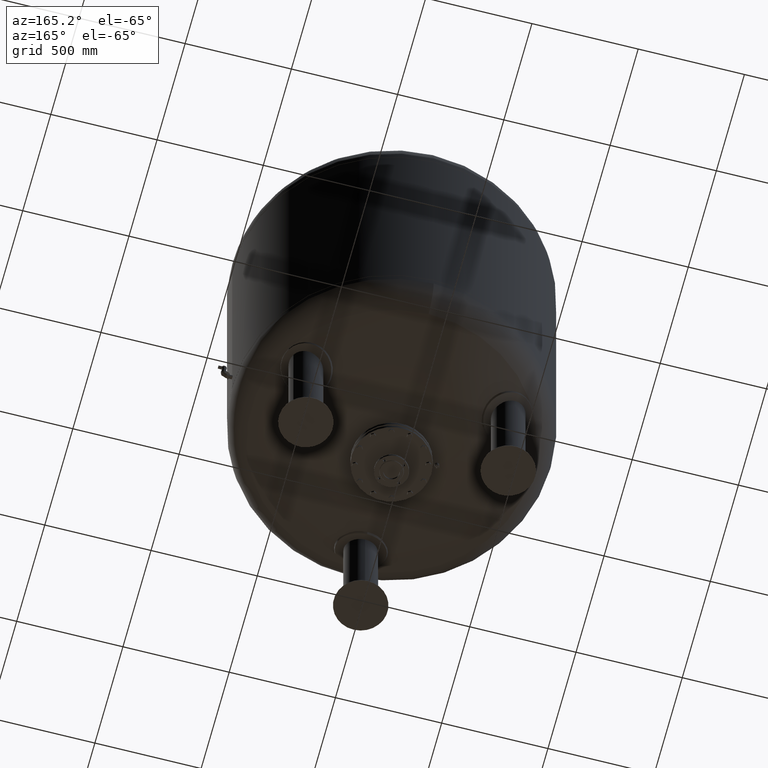
[diagram: clean part render]
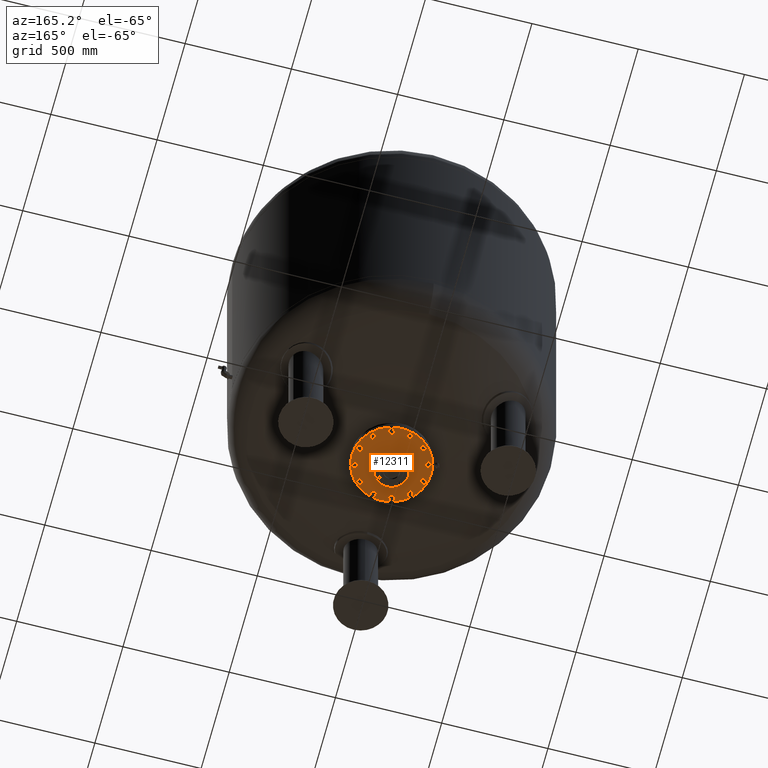
[diagram: same view with one face highlighted and labeled with its STEP entity id]
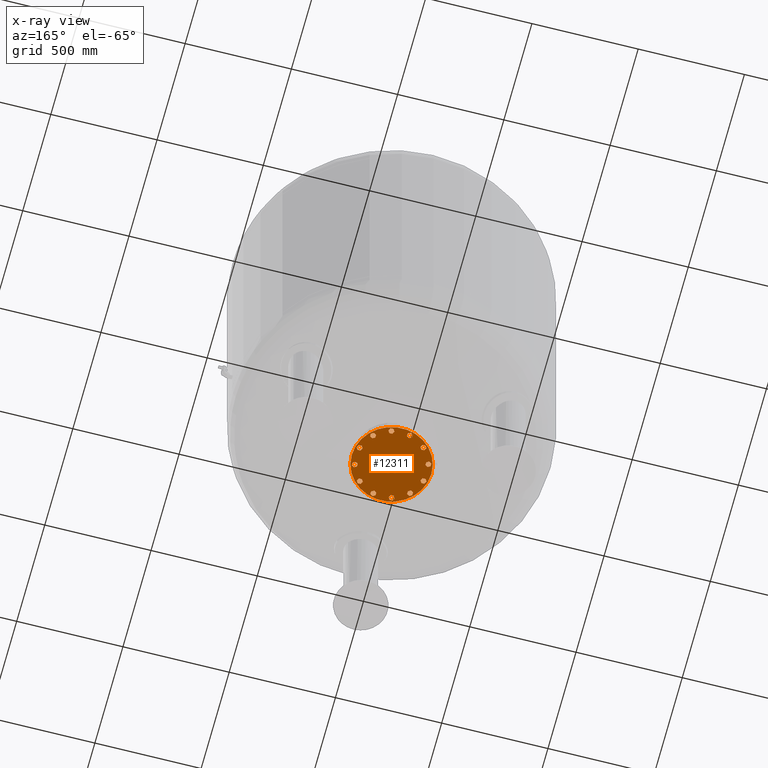
[diagram: x-ray of the same camera — body ghosted, the highlighted face saturated]
A machine part, auxiliary view. The second image highlights one B-rep face of the part: STEP entity #12311.
The next image is the same camera in x-ray: the body ghosted, the highlighted face saturated — about 0% of this face is hidden behind the body in this view.
In plain terms, the highlighted planar face has unit normal (0, 0, -1).
Its self-contained STEP definition (entity closure, byte-faithful):
#4455=CARTESIAN_POINT('',(-38.050000000000018,-4.163799E-015,391.0));
#4456=VERTEX_POINT('',#4455);
#4472=CARTESIAN_POINT('',(38.049999999999983,-8.823426E-015,391.0));
#4473=VERTEX_POINT('',#4472);
#4480=CARTESIAN_POINT('',(-8.604691E-015,-4.163799E-015,391.0));
#4481=DIRECTION('',(0.0,0.0,-1.0));
#4482=DIRECTION('',(-1.0,0.0,0.0));
#4483=AXIS2_PLACEMENT_3D('',#4480,#4481,#4482);
#4484=CIRCLE('',#4483,38.050000000000004);
#4485=EDGE_CURVE('',#4473,#4456,#4484,.T.);
#4495=CARTESIAN_POINT('',(-187.500000000000000,-4.163799E-015,391.000000000000110));
#4496=VERTEX_POINT('',#4495);
#4505=CARTESIAN_POINT('',(187.500000000000000,-2.712517E-014,391.000000000000110));
#4506=VERTEX_POINT('',#4505);
#4507=CARTESIAN_POINT('',(-8.604691E-015,-4.163799E-015,391.000000000000110));
#4508=DIRECTION('',(0.0,0.0,-1.0));
#4509=DIRECTION('',(-1.0,0.0,0.0));
#4510=AXIS2_PLACEMENT_3D('',#4507,#4508,#4509);
#4511=CIRCLE('',#4510,187.500000000000000);
#4512=EDGE_CURVE('',#4506,#4496,#4511,.T.);
#6511=CARTESIAN_POINT('',(43.352190054672320,-175.648982363969960,391.0));
#6512=VERTEX_POINT('',#6511);
#6513=CARTESIAN_POINT('',(55.352190054672313,-168.720779133694460,391.0));
#6514=VERTEX_POINT('',#6513);
#6515=CARTESIAN_POINT('',(43.352190054672320,-175.648982363969960,391.0));
#6516=DIRECTION('',(0.866025403784439,0.500000000000000,0.0));
#6517=VECTOR('',#6516,13.856406460551009);
#6518=LINE('',#6515,#6517);
#6519=EDGE_CURVE('',#6512,#6514,#6518,.T.);
#6551=CARTESIAN_POINT('',(31.352190054672334,-168.720779133694460,391.0));
#6552=VERTEX_POINT('',#6551);
#6553=CARTESIAN_POINT('',(31.352190054672334,-168.720779133694460,391.0));
#6554=DIRECTION('',(0.866025403784439,-0.500000000000000,0.0));
#6555=VECTOR('',#6554,13.856406460551002);
#6556=LINE('',#6553,#6555);
#6557=EDGE_CURVE('',#6552,#6512,#6556,.T.);
#6582=CARTESIAN_POINT('',(31.352190054672349,-154.864372673143440,391.0));
#6583=VERTEX_POINT('',#6582);
#6584=CARTESIAN_POINT('',(31.352190054672349,-154.864372673143440,391.0));
#6585=DIRECTION('',(0.0,-1.0,0.0));
#6586=VECTOR('',#6585,13.856406460551028);
#6587=LINE('',#6584,#6586);
#6588=EDGE_CURVE('',#6583,#6552,#6587,.T.);
#6613=CARTESIAN_POINT('',(43.352190054672320,-147.936169442867940,391.0));
#6614=VERTEX_POINT('',#6613);
#6615=CARTESIAN_POINT('',(43.352190054672320,-147.936169442867940,391.0));
#6616=DIRECTION('',(-0.866025403784438,-0.500000000000000,0.0));
#6617=VECTOR('',#6616,13.856406460550989);
#6618=LINE('',#6615,#6617);
#6619=EDGE_CURVE('',#6614,#6583,#6618,.T.);
#6644=CARTESIAN_POINT('',(55.352190054672313,-154.864372673143440,391.0));
#6645=VERTEX_POINT('',#6644);
#6646=CARTESIAN_POINT('',(55.352190054672313,-168.720779133694460,391.0));
#6647=DIRECTION('',(0.0,1.0,0.0));
#6648=VECTOR('',#6647,13.856406460551028);
#6649=LINE('',#6646,#6648);
#6650=EDGE_CURVE('',#6514,#6645,#6649,.T.);
#6675=CARTESIAN_POINT('',(55.352190054672313,-154.864372673143440,391.0));
#6676=DIRECTION('',(-0.866025403784439,0.500000000000000,0.0));
#6677=VECTOR('',#6676,13.856406460551009);
#6678=LINE('',#6675,#6677);
#6679=EDGE_CURVE('',#6645,#6614,#6678,.T.);
#6985=CARTESIAN_POINT('',(125.368589079022360,-130.440385848746640,391.0));
#6986=VERTEX_POINT('',#6985);
#6987=CARTESIAN_POINT('',(132.296792309297840,-118.440385848746640,391.0));
#6988=VERTEX_POINT('',#6987);
#6989=CARTESIAN_POINT('',(125.368589079022360,-130.440385848746640,391.0));
#6990=DIRECTION('',(0.499999999999999,0.866025403784439,0.0));
#6991=VECTOR('',#6990,13.856406460551007);
#6992=LINE('',#6989,#6991);
#6993=EDGE_CURVE('',#6986,#6988,#6992,.T.);
#7025=CARTESIAN_POINT('',(111.512182618471340,-130.440385848746640,391.0));
#7026=VERTEX_POINT('',#7025);
#7027=CARTESIAN_POINT('',(111.512182618471340,-130.440385848746640,391.0));
#7028=DIRECTION('',(1.0,0.0,0.0));
#7029=VECTOR('',#7028,13.856406460551014);
#7030=LINE('',#7027,#7029);
#7031=EDGE_CURVE('',#7026,#6986,#7030,.T.);
#7056=CARTESIAN_POINT('',(104.583979388195840,-118.440385848746660,391.0));
#7057=VERTEX_POINT('',#7056);
#7058=CARTESIAN_POINT('',(104.583979388195840,-118.440385848746660,391.0));
#7059=DIRECTION('',(0.500000000000000,-0.866025403784439,0.0));
#7060=VECTOR('',#7059,13.856406460551002);
#7061=LINE('',#7058,#7060);
#7062=EDGE_CURVE('',#7057,#7026,#7061,.T.);
#7087=CARTESIAN_POINT('',(111.512182618471340,-106.440385848746640,391.0));
#7088=VERTEX_POINT('',#7087);
#7089=CARTESIAN_POINT('',(111.512182618471340,-106.440385848746640,391.0));
#7090=DIRECTION('',(-0.499999999999999,-0.866025403784439,0.0));
#7091=VECTOR('',#7090,13.856406460551026);
#7092=LINE('',#7089,#7091);
#7093=EDGE_CURVE('',#7088,#7057,#7092,.T.);
#7118=CARTESIAN_POINT('',(125.368589079022340,-106.440385848746640,391.0));
#7119=VERTEX_POINT('',#7118);
#7120=CARTESIAN_POINT('',(132.296792309297840,-118.440385848746640,391.0));
#7121=DIRECTION('',(-0.500000000000000,0.866025403784439,0.0));
#7122=VECTOR('',#7121,13.856406460551014);
#7123=LINE('',#7120,#7122);
#7124=EDGE_CURVE('',#6988,#7119,#7123,.T.);
#7149=CARTESIAN_POINT('',(125.368589079022340,-106.440385848746640,391.0));
#7150=DIRECTION('',(-1.0,0.0,0.0));
#7151=VECTOR('',#7150,13.856406460551000);
#7152=LINE('',#7149,#7151);
#7153=EDGE_CURVE('',#7119,#7088,#7152,.T.);
#7459=CARTESIAN_POINT('',(173.792575903418990,-50.280393284947714,391.0));
#7460=VERTEX_POINT('',#7459);
#7461=CARTESIAN_POINT('',(173.792575903418990,-36.423986824396700,391.0));
#7462=VERTEX_POINT('',#7461);
#7463=CARTESIAN_POINT('',(173.792575903418990,-50.280393284947714,391.0));
#7464=DIRECTION('',(0.0,1.0,0.0));
#7465=VECTOR('',#7464,13.856406460551014);
#7466=LINE('',#7463,#7465);
#7467=EDGE_CURVE('',#7460,#7462,#7466,.T.);
#7499=CARTESIAN_POINT('',(161.792575903418990,-57.208596515223185,391.0));
#7500=VERTEX_POINT('',#7499);
#7501=CARTESIAN_POINT('',(161.792575903418990,-57.208596515223185,391.0));
#7502=DIRECTION('',(0.866025403784440,0.499999999999998,0.0));
#7503=VECTOR('',#7502,13.856406460551000);
#7504=LINE('',#7501,#7503);
#7505=EDGE_CURVE('',#7500,#7460,#7504,.T.);
#7530=CARTESIAN_POINT('',(149.792575903418990,-50.280393284947706,391.0));
#7531=VERTEX_POINT('',#7530);
#7532=CARTESIAN_POINT('',(149.792575903418990,-50.280393284947706,391.0));
#7533=DIRECTION('',(0.866025403784440,-0.499999999999998,0.0));
#7534=VECTOR('',#7533,13.856406460551003);
#7535=LINE('',#7532,#7534);
#7536=EDGE_CURVE('',#7531,#7500,#7535,.T.);
#7561=CARTESIAN_POINT('',(149.792575903419020,-36.423986824396692,391.0));
#7562=VERTEX_POINT('',#7561);
#7563=CARTESIAN_POINT('',(149.792575903419020,-36.423986824396692,391.0));
#7564=DIRECTION('',(0.0,-1.0,0.0));
#7565=VECTOR('',#7564,13.856406460551014);
#7566=LINE('',#7563,#7565);
#7567=EDGE_CURVE('',#7562,#7531,#7566,.T.);
#7592=CARTESIAN_POINT('',(161.792575903418990,-29.495783594121182,391.0));
#7593=VERTEX_POINT('',#7592);
#7594=CARTESIAN_POINT('',(173.792575903418990,-36.423986824396700,391.0));
#7595=DIRECTION('',(-0.866025403784438,0.500000000000000,0.0));
#7596=VECTOR('',#7595,13.856406460551023);
#7597=LINE('',#7594,#7596);
#7598=EDGE_CURVE('',#7462,#7593,#7597,.T.);
#7623=CARTESIAN_POINT('',(161.792575903418990,-29.495783594121182,391.0));
#7624=DIRECTION('',(-0.866025403784438,-0.500000000000001,0.0));
#7625=VECTOR('',#7624,13.856406460550994);
#7626=LINE('',#7623,#7625);
#7627=EDGE_CURVE('',#7593,#7562,#7626,.T.);
#7933=CARTESIAN_POINT('',(175.648982363969960,43.352190054672327,391.0));
#7934=VERTEX_POINT('',#7933);
#7935=CARTESIAN_POINT('',(168.720779133694460,55.352190054672320,391.0));
#7936=VERTEX_POINT('',#7935);
#7937=CARTESIAN_POINT('',(175.648982363969960,43.352190054672327,391.0));
#7938=DIRECTION('',(-0.500000000000000,0.866025403784439,0.0));
#7939=VECTOR('',#7938,13.856406460551009);
#7940=LINE('',#7937,#7939);
#7941=EDGE_CURVE('',#7934,#7936,#7940,.T.);
#7973=CARTESIAN_POINT('',(168.720779133694460,31.352190054672338,391.0));
#7974=VERTEX_POINT('',#7973);
#7975=CARTESIAN_POINT('',(168.720779133694460,31.352190054672338,391.0));
#7976=DIRECTION('',(0.500000000000000,0.866025403784439,0.0));
#7977=VECTOR('',#7976,13.856406460551003);
#7978=LINE('',#7975,#7977);
#7979=EDGE_CURVE('',#7974,#7934,#7978,.T.);
#8004=CARTESIAN_POINT('',(154.864372673143440,31.352190054672352,391.0));
#8005=VERTEX_POINT('',#8004);
#8006=CARTESIAN_POINT('',(154.864372673143440,31.352190054672352,391.0));
#8007=DIRECTION('',(1.0,0.0,0.0));
#8008=VECTOR('',#8007,13.856406460551028);
#8009=LINE('',#8006,#8008);
#8010=EDGE_CURVE('',#8005,#7974,#8009,.T.);
#8035=CARTESIAN_POINT('',(147.936169442867940,43.352190054672327,391.0));
#8036=VERTEX_POINT('',#8035);
#8037=CARTESIAN_POINT('',(147.936169442867940,43.352190054672327,391.0));
#8038=DIRECTION('',(0.500000000000000,-0.866025403784439,0.0));
#8039=VECTOR('',#8038,13.856406460550991);
#8040=LINE('',#8037,#8039);
#8041=EDGE_CURVE('',#8036,#8005,#8040,.T.);
#8066=CARTESIAN_POINT('',(154.864372673143440,55.352190054672320,391.0));
#8067=VERTEX_POINT('',#8066);
#8068=CARTESIAN_POINT('',(168.720779133694460,55.352190054672320,391.0));
#8069=DIRECTION('',(-1.0,0.0,0.0));
#8070=VECTOR('',#8069,13.856406460551028);
#8071=LINE('',#8068,#8070);
#8072=EDGE_CURVE('',#7936,#8067,#8071,.T.);
#8097=CARTESIAN_POINT('',(154.864372673143440,55.352190054672320,391.0));
#8098=DIRECTION('',(-0.500000000000000,-0.866025403784439,0.0));
#8099=VECTOR('',#8098,13.856406460551009);
#8100=LINE('',#8097,#8099);
#8101=EDGE_CURVE('',#8067,#8036,#8100,.T.);
#8407=CARTESIAN_POINT('',(130.440385848746670,125.368589079022270,391.0));
#8408=VERTEX_POINT('',#8407);
#8409=CARTESIAN_POINT('',(118.440385848746690,132.296792309297790,391.0));
#8410=VERTEX_POINT('',#8409);
#8411=CARTESIAN_POINT('',(130.440385848746670,125.368589079022270,391.0));
#8412=DIRECTION('',(-0.866025403784438,0.500000000000001,0.0));
#8413=VECTOR('',#8412,13.856406460551009);
#8414=LINE('',#8411,#8413);
#8415=EDGE_CURVE('',#8408,#8410,#8414,.T.);
#8447=CARTESIAN_POINT('',(130.440385848746670,111.512182618471270,391.0));
#8448=VERTEX_POINT('',#8447);
#8449=CARTESIAN_POINT('',(130.440385848746670,111.512182618471270,391.0));
#8450=DIRECTION('',(0.0,1.0,0.0));
#8451=VECTOR('',#8450,13.856406460551000);
#8452=LINE('',#8449,#8451);
#8453=EDGE_CURVE('',#8448,#8408,#8452,.T.);
#8478=CARTESIAN_POINT('',(118.440385848746700,104.583979388195790,391.0));
#8479=VERTEX_POINT('',#8478);
#8480=CARTESIAN_POINT('',(118.440385848746700,104.583979388195790,391.0));
#8481=DIRECTION('',(0.866025403784439,0.500000000000000,0.0));
#8482=VECTOR('',#8481,13.856406460550982);
#8483=LINE('',#8480,#8482);
#8484=EDGE_CURVE('',#8479,#8448,#8483,.T.);
#8509=CARTESIAN_POINT('',(106.440385848746700,111.512182618471290,391.0));
#8510=VERTEX_POINT('',#8509);
#8511=CARTESIAN_POINT('',(106.440385848746700,111.512182618471290,391.0));
#8512=DIRECTION('',(0.866025403784439,-0.500000000000000,0.0));
#8513=VECTOR('',#8512,13.856406460551014);
#8514=LINE('',#8511,#8513);
#8515=EDGE_CURVE('',#8510,#8479,#8514,.T.);
#8540=CARTESIAN_POINT('',(106.440385848746700,125.368589079022270,391.0));
#8541=VERTEX_POINT('',#8540);
#8542=CARTESIAN_POINT('',(118.440385848746690,132.296792309297790,391.0));
#8543=DIRECTION('',(-0.866025403784438,-0.500000000000001,0.0));
#8544=VECTOR('',#8543,13.856406460551009);
#8545=LINE('',#8542,#8544);
#8546=EDGE_CURVE('',#8410,#8541,#8545,.T.);
#8571=CARTESIAN_POINT('',(106.440385848746700,125.368589079022270,391.0));
#8572=DIRECTION('',(0.0,-1.0,0.0));
#8573=VECTOR('',#8572,13.856406460550986);
#8574=LINE('',#8571,#8573);
#8575=EDGE_CURVE('',#8541,#8510,#8574,.T.);
#8881=CARTESIAN_POINT('',(50.280393284947706,173.792575903418990,391.0));
#8882=VERTEX_POINT('',#8881);
#8883=CARTESIAN_POINT('',(36.423986824396678,173.792575903418940,391.0));
#8884=VERTEX_POINT('',#8883);
#8885=CARTESIAN_POINT('',(50.280393284947706,173.792575903418990,391.0));
#8886=DIRECTION('',(-1.0,0.0,0.0));
#8887=VECTOR('',#8886,13.856406460551028);
#8888=LINE('',#8885,#8887);
#8889=EDGE_CURVE('',#8882,#8884,#8888,.T.);
#8921=CARTESIAN_POINT('',(57.208596515223178,161.792575903418990,391.0));
#8922=VERTEX_POINT('',#8921);
#8923=CARTESIAN_POINT('',(57.208596515223178,161.792575903418990,391.0));
#8924=DIRECTION('',(-0.499999999999998,0.866025403784440,0.0));
#8925=VECTOR('',#8924,13.856406460551000);
#8926=LINE('',#8923,#8925);
#8927=EDGE_CURVE('',#8922,#8882,#8926,.T.);
#8952=CARTESIAN_POINT('',(50.280393284947692,149.792575903418990,391.0));
#8953=VERTEX_POINT('',#8952);
#8954=CARTESIAN_POINT('',(50.280393284947692,149.792575903418990,391.0));
#8955=DIRECTION('',(0.499999999999999,0.866025403784439,0.0));
#8956=VECTOR('',#8955,13.856406460551007);
#8957=LINE('',#8954,#8956);
#8958=EDGE_CURVE('',#8953,#8922,#8957,.T.);
#8983=CARTESIAN_POINT('',(36.423986824396678,149.792575903418990,391.0));
#8984=VERTEX_POINT('',#8983);
#8985=CARTESIAN_POINT('',(36.423986824396678,149.792575903418990,391.0));
#8986=DIRECTION('',(1.0,0.0,0.0));
#8987=VECTOR('',#8986,13.856406460551014);
#8988=LINE('',#8985,#8987);
#8989=EDGE_CURVE('',#8984,#8953,#8988,.T.);
#9014=CARTESIAN_POINT('',(29.495783594121185,161.792575903418990,391.0));
#9015=VERTEX_POINT('',#9014);
#9016=CARTESIAN_POINT('',(36.423986824396678,173.792575903418940,391.0));
#9017=DIRECTION('',(-0.500000000000001,-0.866025403784438,0.0));
#9018=VECTOR('',#9017,13.856406460550961);
#9019=LINE('',#9016,#9018);
#9020=EDGE_CURVE('',#8884,#9015,#9019,.T.);
#9045=CARTESIAN_POINT('',(29.495783594121185,161.792575903418990,391.0));
#9046=DIRECTION('',(0.499999999999999,-0.866025403784439,0.0));
#9047=VECTOR('',#9046,13.856406460551010);
#9048=LINE('',#9045,#9047);
#9049=EDGE_CURVE('',#9015,#8984,#9048,.T.);
#9355=CARTESIAN_POINT('',(-43.352190054672327,175.648982363969990,391.0));
#9356=VERTEX_POINT('',#9355);
#9357=CARTESIAN_POINT('',(-55.352190054672306,168.720779133694460,391.0));
#9358=VERTEX_POINT('',#9357);
#9359=CARTESIAN_POINT('',(-43.352190054672327,175.648982363969990,391.0));
#9360=DIRECTION('',(-0.866025403784438,-0.500000000000002,0.0));
#9361=VECTOR('',#9360,13.856406460551009);
#9362=LINE('',#9359,#9361);
#9363=EDGE_CURVE('',#9356,#9358,#9362,.T.);
#9395=CARTESIAN_POINT('',(-31.352190054672313,168.720779133694490,391.0));
#9396=VERTEX_POINT('',#9395);
#9397=CARTESIAN_POINT('',(-31.352190054672313,168.720779133694490,391.0));
#9398=DIRECTION('',(-0.866025403784439,0.499999999999999,0.0));
#9399=VECTOR('',#9398,13.856406460551026);
#9400=LINE('',#9397,#9399);
#9401=EDGE_CURVE('',#9396,#9356,#9400,.T.);
#9426=CARTESIAN_POINT('',(-31.352190054672327,154.864372673143460,391.0));
#9427=VERTEX_POINT('',#9426);
#9428=CARTESIAN_POINT('',(-31.352190054672327,154.864372673143460,391.0));
#9429=DIRECTION('',(0.0,1.0,0.0));
#9430=VECTOR('',#9429,13.856406460551028);
#9431=LINE('',#9428,#9430);
#9432=EDGE_CURVE('',#9427,#9396,#9431,.T.);
#9457=CARTESIAN_POINT('',(-43.352190054672334,147.936169442867940,391.0));
#9458=VERTEX_POINT('',#9457);
#9459=CARTESIAN_POINT('',(-43.352190054672334,147.936169442867940,391.0));
#9460=DIRECTION('',(0.866025403784438,0.500000000000001,0.0));
#9461=VECTOR('',#9460,13.856406460551034);
#9462=LINE('',#9459,#9461);
#9463=EDGE_CURVE('',#9458,#9427,#9462,.T.);
#9488=CARTESIAN_POINT('',(-55.352190054672306,154.864372673143460,391.0));
#9489=VERTEX_POINT('',#9488);
#9490=CARTESIAN_POINT('',(-55.352190054672306,168.720779133694460,391.0));
#9491=DIRECTION('',(0.0,-1.0,0.0));
#9492=VECTOR('',#9491,13.856406460551000);
#9493=LINE('',#9490,#9492);
#9494=EDGE_CURVE('',#9358,#9489,#9493,.T.);
#9519=CARTESIAN_POINT('',(-55.352190054672306,154.864372673143460,391.0));
#9520=DIRECTION('',(0.866025403784437,-0.500000000000002,0.0));
#9521=VECTOR('',#9520,13.856406460551003);
#9522=LINE('',#9519,#9521);
#9523=EDGE_CURVE('',#9489,#9458,#9522,.T.);
#9829=CARTESIAN_POINT('',(-125.368589079022270,130.440385848746700,391.0));
#9830=VERTEX_POINT('',#9829);
#9831=CARTESIAN_POINT('',(-132.296792309297790,118.440385848746690,391.0));
#9832=VERTEX_POINT('',#9831);
#9833=CARTESIAN_POINT('',(-125.368589079022270,130.440385848746700,391.0));
#9834=DIRECTION('',(-0.500000000000000,-0.866025403784439,0.0));
#9835=VECTOR('',#9834,13.856406460551034);
#9836=LINE('',#9833,#9835);
#9837=EDGE_CURVE('',#9830,#9832,#9836,.T.);
#9869=CARTESIAN_POINT('',(-111.512182618471270,130.440385848746670,391.0));
#9870=VERTEX_POINT('',#9869);
#9871=CARTESIAN_POINT('',(-111.512182618471270,130.440385848746670,391.0));
#9872=DIRECTION('',(-1.0,0.0,0.0));
#9873=VECTOR('',#9872,13.856406460551000);
#9874=LINE('',#9871,#9873);
#9875=EDGE_CURVE('',#9870,#9830,#9874,.T.);
#9900=CARTESIAN_POINT('',(-104.583979388195760,118.440385848746690,391.0));
#9901=VERTEX_POINT('',#9900);
#9902=CARTESIAN_POINT('',(-104.583979388195760,118.440385848746690,391.0));
#9903=DIRECTION('',(-0.500000000000001,0.866025403784438,0.0));
#9904=VECTOR('',#9903,13.856406460551009);
#9905=LINE('',#9902,#9904);
#9906=EDGE_CURVE('',#9901,#9870,#9905,.T.);
#9931=CARTESIAN_POINT('',(-111.512182618471270,106.440385848746700,391.0));
#9932=VERTEX_POINT('',#9931);
#9933=CARTESIAN_POINT('',(-111.512182618471270,106.440385848746700,391.0));
#9934=DIRECTION('',(0.500000000000001,0.866025403784438,0.0));
#9935=VECTOR('',#9934,13.856406460551009);
#9936=LINE('',#9933,#9935);
#9937=EDGE_CURVE('',#9932,#9901,#9936,.T.);
#9962=CARTESIAN_POINT('',(-125.368589079022270,106.440385848746700,391.0));
#9963=VERTEX_POINT('',#9962);
#9964=CARTESIAN_POINT('',(-132.296792309297790,118.440385848746690,391.0));
#9965=DIRECTION('',(0.500000000000001,-0.866025403784438,0.0));
#9966=VECTOR('',#9965,13.856406460551009);
#9967=LINE('',#9964,#9966);
#9968=EDGE_CURVE('',#9832,#9963,#9967,.T.);
#9993=CARTESIAN_POINT('',(-125.368589079022270,106.440385848746700,391.0));
#9994=DIRECTION('',(1.0,0.0,0.0));
#9995=VECTOR('',#9994,13.856406460551000);
#9996=LINE('',#9993,#9995);
#9997=EDGE_CURVE('',#9963,#9932,#9996,.T.);
#10303=CARTESIAN_POINT('',(-173.792575903418960,50.280393284947714,391.0));
#10304=VERTEX_POINT('',#10303);
#10305=CARTESIAN_POINT('',(-173.792575903418960,36.423986824396714,391.0));
#10306=VERTEX_POINT('',#10305);
#10307=CARTESIAN_POINT('',(-173.792575903418960,50.280393284947714,391.0));
#10308=DIRECTION('',(0.0,-1.0,0.0));
#10309=VECTOR('',#10308,13.856406460551000);
#10310=LINE('',#10307,#10309);
#10311=EDGE_CURVE('',#10304,#10306,#10310,.T.);
#10343=CARTESIAN_POINT('',(-161.792575903419020,57.208596515223206,391.0));
#10344=VERTEX_POINT('',#10343);
#10345=CARTESIAN_POINT('',(-161.792575903419020,57.208596515223206,391.0));
#10346=DIRECTION('',(-0.866025403784438,-0.500000000000001,0.0));
#10347=VECTOR('',#10346,13.856406460550961);
#10348=LINE('',#10345,#10347);
#10349=EDGE_CURVE('',#10344,#10304,#10348,.T.);
#10374=CARTESIAN_POINT('',(-149.792575903418990,50.280393284947714,391.0));
#10375=VERTEX_POINT('',#10374);
#10376=CARTESIAN_POINT('',(-149.792575903418990,50.280393284947714,391.0));
#10377=DIRECTION('',(-0.866025403784440,0.499999999999998,0.0));
#10378=VECTOR('',#10377,13.856406460551035);
#10379=LINE('',#10376,#10378);
#10380=EDGE_CURVE('',#10375,#10344,#10379,.T.);
#10405=CARTESIAN_POINT('',(-149.792575903418990,36.423986824396685,391.0));
#10406=VERTEX_POINT('',#10405);
#10407=CARTESIAN_POINT('',(-149.792575903418990,36.423986824396685,391.0));
#10408=DIRECTION('',(0.0,1.0,0.0));
#10409=VECTOR('',#10408,13.856406460551028);
#10410=LINE('',#10407,#10409);
#10411=EDGE_CURVE('',#10406,#10375,#10410,.T.);
#10436=CARTESIAN_POINT('',(-161.792575903418990,29.495783594121210,391.0));
#10437=VERTEX_POINT('',#10436);
#10438=CARTESIAN_POINT('',(-173.792575903418960,36.423986824396714,391.0));
#10439=DIRECTION('',(0.866025403784438,-0.500000000000001,0.0));
#10440=VECTOR('',#10439,13.856406460550991);
#10441=LINE('',#10438,#10440);
#10442=EDGE_CURVE('',#10306,#10437,#10441,.T.);
#10467=CARTESIAN_POINT('',(-161.792575903418990,29.495783594121210,391.0));
#10468=DIRECTION('',(0.866025403784440,0.499999999999998,0.0));
#10469=VECTOR('',#10468,13.856406460551002);
#10470=LINE('',#10467,#10469);
#10471=EDGE_CURVE('',#10437,#10406,#10470,.T.);
#10777=CARTESIAN_POINT('',(-175.648982363969990,-43.352190054672270,391.0));
#10778=VERTEX_POINT('',#10777);
#10779=CARTESIAN_POINT('',(-168.720779133694490,-55.352190054672263,391.0));
#10780=VERTEX_POINT('',#10779);
#10781=CARTESIAN_POINT('',(-175.648982363969990,-43.352190054672270,391.0));
#10782=DIRECTION('',(0.500000000000000,-0.866025403784439,0.0));
#10783=VECTOR('',#10782,13.856406460551009);
#10784=LINE('',#10781,#10783);
#10785=EDGE_CURVE('',#10778,#10780,#10784,.T.);
#10817=CARTESIAN_POINT('',(-168.720779133694490,-31.352190054672281,391.0));
#10818=VERTEX_POINT('',#10817);
#10819=CARTESIAN_POINT('',(-168.720779133694490,-31.352190054672281,391.0));
#10820=DIRECTION('',(-0.500000000000000,-0.866025403784439,0.0));
#10821=VECTOR('',#10820,13.856406460551003);
#10822=LINE('',#10819,#10821);
#10823=EDGE_CURVE('',#10818,#10778,#10822,.T.);
#10848=CARTESIAN_POINT('',(-154.864372673143460,-31.352190054672299,391.0));
#10849=VERTEX_POINT('',#10848);
#10850=CARTESIAN_POINT('',(-154.864372673143460,-31.352190054672299,391.0));
#10851=DIRECTION('',(-1.0,0.0,0.0));
#10852=VECTOR('',#10851,13.856406460551028);
#10853=LINE('',#10850,#10852);
#10854=EDGE_CURVE('',#10849,#10818,#10853,.T.);
#10879=CARTESIAN_POINT('',(-147.936169442867960,-43.352190054672299,391.0));
#10880=VERTEX_POINT('',#10879);
#10881=CARTESIAN_POINT('',(-147.936169442867960,-43.352190054672299,391.0));
#10882=DIRECTION('',(-0.500000000000000,0.866025403784439,0.0));
#10883=VECTOR('',#10882,13.856406460551014);
#10884=LINE('',#10881,#10883);
#10885=EDGE_CURVE('',#10880,#10849,#10884,.T.);
#10910=CARTESIAN_POINT('',(-154.864372673143460,-55.352190054672263,391.0));
#10911=VERTEX_POINT('',#10910);
#10912=CARTESIAN_POINT('',(-168.720779133694490,-55.352190054672263,391.0));
#10913=DIRECTION('',(1.0,0.0,0.0));
#10914=VECTOR('',#10913,13.856406460551028);
#10915=LINE('',#10912,#10914);
#10916=EDGE_CURVE('',#10780,#10911,#10915,.T.);
#10941=CARTESIAN_POINT('',(-154.864372673143460,-55.352190054672263,391.0));
#10942=DIRECTION('',(0.500000000000001,0.866025403784438,0.0));
#10943=VECTOR('',#10942,13.856406460550984);
#10944=LINE('',#10941,#10943);
#10945=EDGE_CURVE('',#10911,#10880,#10944,.T.);
#11251=CARTESIAN_POINT('',(-130.440385848746730,-125.368589079022260,391.0));
#11252=VERTEX_POINT('',#11251);
#11253=CARTESIAN_POINT('',(-118.440385848746730,-132.296792309297760,391.0));
#11254=VERTEX_POINT('',#11253);
#11255=CARTESIAN_POINT('',(-130.440385848746730,-125.368589079022260,391.0));
#11256=DIRECTION('',(0.866025403784439,-0.500000000000000,0.0));
#11257=VECTOR('',#11256,13.856406460551014);
#11258=LINE('',#11255,#11257);
#11259=EDGE_CURVE('',#11252,#11254,#11258,.T.);
#11291=CARTESIAN_POINT('',(-130.440385848746700,-111.512182618471260,391.0));
#11292=VERTEX_POINT('',#11291);
#11293=CARTESIAN_POINT('',(-130.440385848746700,-111.512182618471260,391.0));
#11294=DIRECTION('',(0.0,-1.0,0.0));
#11295=VECTOR('',#11294,13.856406460551000);
#11296=LINE('',#11293,#11295);
#11297=EDGE_CURVE('',#11292,#11252,#11296,.T.);
#11322=CARTESIAN_POINT('',(-118.440385848746700,-104.583979388195760,391.0));
#11323=VERTEX_POINT('',#11322);
#11324=CARTESIAN_POINT('',(-118.440385848746700,-104.583979388195760,391.0));
#11325=DIRECTION('',(-0.866025403784439,-0.500000000000000,0.0));
#11326=VECTOR('',#11325,13.856406460551014);
#11327=LINE('',#11324,#11326);
#11328=EDGE_CURVE('',#11323,#11292,#11327,.T.);
#11353=CARTESIAN_POINT('',(-106.440385848746710,-111.512182618471270,391.0));
#11354=VERTEX_POINT('',#11353);
#11355=CARTESIAN_POINT('',(-106.440385848746710,-111.512182618471270,391.0));
#11356=DIRECTION('',(-0.866025403784438,0.500000000000001,0.0));
#11357=VECTOR('',#11356,13.856406460551009);
#11358=LINE('',#11355,#11357);
#11359=EDGE_CURVE('',#11354,#11323,#11358,.T.);
#11384=CARTESIAN_POINT('',(-106.440385848746710,-125.368589079022260,391.0));
#11385=VERTEX_POINT('',#11384);
#11386=CARTESIAN_POINT('',(-118.440385848746730,-132.296792309297760,391.0));
#11387=DIRECTION('',(0.866025403784439,0.499999999999999,0.0));
#11388=VECTOR('',#11387,13.856406460551026);
#11389=LINE('',#11386,#11388);
#11390=EDGE_CURVE('',#11254,#11385,#11389,.T.);
#11415=CARTESIAN_POINT('',(-106.440385848746710,-125.368589079022260,391.0));
#11416=DIRECTION('',(0.0,1.0,0.0));
#11417=VECTOR('',#11416,13.856406460550986);
#11418=LINE('',#11415,#11417);
#11419=EDGE_CURVE('',#11385,#11354,#11418,.T.);
#11995=CARTESIAN_POINT('',(-50.280393284947756,-173.792575903418960,391.0));
#11996=VERTEX_POINT('',#11995);
#11997=CARTESIAN_POINT('',(-36.423986824396742,-173.792575903418960,391.0));
#11998=VERTEX_POINT('',#11997);
#11999=CARTESIAN_POINT('',(-50.280393284947756,-173.792575903418960,391.0));
#12000=DIRECTION('',(1.0,0.0,0.0));
#12001=VECTOR('',#12000,13.856406460551014);
#12002=LINE('',#11999,#12001);
#12003=EDGE_CURVE('',#11996,#11998,#12002,.T.);
#12035=CARTESIAN_POINT('',(-57.208596515223249,-161.792575903418990,391.0));
#12036=VERTEX_POINT('',#12035);
#12037=CARTESIAN_POINT('',(-57.208596515223249,-161.792575903418990,391.0));
#12038=DIRECTION('',(0.500000000000000,-0.866025403784439,0.0));
#12039=VECTOR('',#12038,13.856406460550986);
#12040=LINE('',#12037,#12039);
#12041=EDGE_CURVE('',#12036,#11996,#12040,.T.);
#12066=CARTESIAN_POINT('',(-50.280393284947735,-149.792575903418990,391.0));
#12067=VERTEX_POINT('',#12066);
#12068=CARTESIAN_POINT('',(-50.280393284947735,-149.792575903418990,391.0));
#12069=DIRECTION('',(-0.500000000000000,-0.866025403784438,0.0));
#12070=VECTOR('',#12069,13.856406460551021);
#12071=LINE('',#12068,#12070);
#12072=EDGE_CURVE('',#12067,#12036,#12071,.T.);
#12097=CARTESIAN_POINT('',(-36.423986824396721,-149.792575903418990,391.0));
#12098=VERTEX_POINT('',#12097);
#12099=CARTESIAN_POINT('',(-36.423986824396721,-149.792575903418990,391.0));
#12100=DIRECTION('',(-1.0,0.0,0.0));
#12101=VECTOR('',#12100,13.856406460551014);
#12102=LINE('',#12099,#12101);
#12103=EDGE_CURVE('',#12098,#12067,#12102,.T.);
#12128=CARTESIAN_POINT('',(-29.495783594121228,-161.792575903418990,391.0));
#12129=VERTEX_POINT('',#12128);
#12130=CARTESIAN_POINT('',(-36.423986824396742,-173.792575903418960,391.0));
#12131=DIRECTION('',(0.500000000000001,0.866025403784438,0.0));
#12132=VECTOR('',#12131,13.856406460550996);
#12133=LINE('',#12130,#12132);
#12134=EDGE_CURVE('',#11998,#12129,#12133,.T.);
#12159=CARTESIAN_POINT('',(-29.495783594121228,-161.792575903418990,391.0));
#12160=DIRECTION('',(-0.499999999999999,0.866025403784439,0.0));
#12161=VECTOR('',#12160,13.856406460551010);
#12162=LINE('',#12159,#12161);
#12163=EDGE_CURVE('',#12129,#12098,#12162,.T.);
#12190=CARTESIAN_POINT('',(-19.025000000000009,-4.163799E-015,391.0));
#12191=DIRECTION('',(0.0,0.0,-1.0));
#12192=DIRECTION('',(0.0,-1.0,0.0));
#12193=AXIS2_PLACEMENT_3D('',#12190,#12191,#12192);
#12194=PLANE('',#12193);
#12195=CARTESIAN_POINT('',(-8.604691E-015,-4.163799E-015,391.000000000000110));
#12196=DIRECTION('',(0.0,0.0,-1.0));
#12197=DIRECTION('',(-1.0,0.0,0.0));
#12198=AXIS2_PLACEMENT_3D('',#12195,#12196,#12197);
#12199=CIRCLE('',#12198,187.500000000000000);
#12200=EDGE_CURVE('',#4496,#4506,#12199,.T.);
#12201=ORIENTED_EDGE('',*,*,#12200,.T.);
#12202=ORIENTED_EDGE('',*,*,#4512,.T.);
#12203=EDGE_LOOP('',(#12201,#12202));
#12204=FACE_OUTER_BOUND('',#12203,.T.);
#12205=ORIENTED_EDGE('',*,*,#6519,.T.);
#12206=ORIENTED_EDGE('',*,*,#6650,.T.);
#12207=ORIENTED_EDGE('',*,*,#6679,.T.);
#12208=ORIENTED_EDGE('',*,*,#6619,.T.);
#12209=ORIENTED_EDGE('',*,*,#6588,.T.);
#12210=ORIENTED_EDGE('',*,*,#6557,.T.);
#12211=EDGE_LOOP('',(#12205,#12206,#12207,#12208,#12209,#12210));
#12212=FACE_BOUND('',#12211,.T.);
#12213=ORIENTED_EDGE('',*,*,#6993,.T.);
#12214=ORIENTED_EDGE('',*,*,#7124,.T.);
#12215=ORIENTED_EDGE('',*,*,#7153,.T.);
#12216=ORIENTED_EDGE('',*,*,#7093,.T.);
#12217=ORIENTED_EDGE('',*,*,#7062,.T.);
#12218=ORIENTED_EDGE('',*,*,#7031,.T.);
#12219=EDGE_LOOP('',(#12213,#12214,#12215,#12216,#12217,#12218));
#12220=FACE_BOUND('',#12219,.T.);
#12221=ORIENTED_EDGE('',*,*,#7467,.T.);
#12222=ORIENTED_EDGE('',*,*,#7598,.T.);
#12223=ORIENTED_EDGE('',*,*,#7627,.T.);
#12224=ORIENTED_EDGE('',*,*,#7567,.T.);
#12225=ORIENTED_EDGE('',*,*,#7536,.T.);
#12226=ORIENTED_EDGE('',*,*,#7505,.T.);
#12227=EDGE_LOOP('',(#12221,#12222,#12223,#12224,#12225,#12226));
#12228=FACE_BOUND('',#12227,.T.);
#12229=ORIENTED_EDGE('',*,*,#7941,.T.);
#12230=ORIENTED_EDGE('',*,*,#8072,.T.);
#12231=ORIENTED_EDGE('',*,*,#8101,.T.);
#12232=ORIENTED_EDGE('',*,*,#8041,.T.);
#12233=ORIENTED_EDGE('',*,*,#8010,.T.);
#12234=ORIENTED_EDGE('',*,*,#7979,.T.);
#12235=EDGE_LOOP('',(#12229,#12230,#12231,#12232,#12233,#12234));
#12236=FACE_BOUND('',#12235,.T.);
#12237=ORIENTED_EDGE('',*,*,#8415,.T.);
#12238=ORIENTED_EDGE('',*,*,#8546,.T.);
#12239=ORIENTED_EDGE('',*,*,#8575,.T.);
#12240=ORIENTED_EDGE('',*,*,#8515,.T.);
#12241=ORIENTED_EDGE('',*,*,#8484,.T.);
#12242=ORIENTED_EDGE('',*,*,#8453,.T.);
#12243=EDGE_LOOP('',(#12237,#12238,#12239,#12240,#12241,#12242));
#12244=FACE_BOUND('',#12243,.T.);
#12245=ORIENTED_EDGE('',*,*,#8889,.T.);
#12246=ORIENTED_EDGE('',*,*,#9020,.T.);
#12247=ORIENTED_EDGE('',*,*,#9049,.T.);
#12248=ORIENTED_EDGE('',*,*,#8989,.T.);
#12249=ORIENTED_EDGE('',*,*,#8958,.T.);
#12250=ORIENTED_EDGE('',*,*,#8927,.T.);
#12251=EDGE_LOOP('',(#12245,#12246,#12247,#12248,#12249,#12250));
#12252=FACE_BOUND('',#12251,.T.);
#12253=ORIENTED_EDGE('',*,*,#9363,.T.);
#12254=ORIENTED_EDGE('',*,*,#9494,.T.);
#12255=ORIENTED_EDGE('',*,*,#9523,.T.);
#12256=ORIENTED_EDGE('',*,*,#9463,.T.);
#12257=ORIENTED_EDGE('',*,*,#9432,.T.);
#12258=ORIENTED_EDGE('',*,*,#9401,.T.);
#12259=EDGE_LOOP('',(#12253,#12254,#12255,#12256,#12257,#12258));
#12260=FACE_BOUND('',#12259,.T.);
#12261=ORIENTED_EDGE('',*,*,#9837,.T.);
#12262=ORIENTED_EDGE('',*,*,#9968,.T.);
#12263=ORIENTED_EDGE('',*,*,#9997,.T.);
#12264=ORIENTED_EDGE('',*,*,#9937,.T.);
#12265=ORIENTED_EDGE('',*,*,#9906,.T.);
#12266=ORIENTED_EDGE('',*,*,#9875,.T.);
#12267=EDGE_LOOP('',(#12261,#12262,#12263,#12264,#12265,#12266));
#12268=FACE_BOUND('',#12267,.T.);
#12269=ORIENTED_EDGE('',*,*,#10311,.T.);
#12270=ORIENTED_EDGE('',*,*,#10442,.T.);
#12271=ORIENTED_EDGE('',*,*,#10471,.T.);
#12272=ORIENTED_EDGE('',*,*,#10411,.T.);
#12273=ORIENTED_EDGE('',*,*,#10380,.T.);
#12274=ORIENTED_EDGE('',*,*,#10349,.T.);
#12275=EDGE_LOOP('',(#12269,#12270,#12271,#12272,#12273,#12274));
#12276=FACE_BOUND('',#12275,.T.);
#12277=ORIENTED_EDGE('',*,*,#10785,.T.);
#12278=ORIENTED_EDGE('',*,*,#10916,.T.);
#12279=ORIENTED_EDGE('',*,*,#10945,.T.);
#12280=ORIENTED_EDGE('',*,*,#10885,.T.);
#12281=ORIENTED_EDGE('',*,*,#10854,.T.);
#12282=ORIENTED_EDGE('',*,*,#10823,.T.);
#12283=EDGE_LOOP('',(#12277,#12278,#12279,#12280,#12281,#12282));
#12284=FACE_BOUND('',#12283,.T.);
#12285=ORIENTED_EDGE('',*,*,#11259,.T.);
#12286=ORIENTED_EDGE('',*,*,#11390,.T.);
#12287=ORIENTED_EDGE('',*,*,#11419,.T.);
#12288=ORIENTED_EDGE('',*,*,#11359,.T.);
#12289=ORIENTED_EDGE('',*,*,#11328,.T.);
#12290=ORIENTED_EDGE('',*,*,#11297,.T.);
#12291=EDGE_LOOP('',(#12285,#12286,#12287,#12288,#12289,#12290));
#12292=FACE_BOUND('',#12291,.T.);
#12293=ORIENTED_EDGE('',*,*,#12003,.T.);
#12294=ORIENTED_EDGE('',*,*,#12134,.T.);
#12295=ORIENTED_EDGE('',*,*,#12163,.T.);
#12296=ORIENTED_EDGE('',*,*,#12103,.T.);
#12297=ORIENTED_EDGE('',*,*,#12072,.T.);
#12298=ORIENTED_EDGE('',*,*,#12041,.T.);
#12299=EDGE_LOOP('',(#12293,#12294,#12295,#12296,#12297,#12298));
#12300=FACE_BOUND('',#12299,.T.);
#12301=CARTESIAN_POINT('',(-8.604691E-015,-4.163799E-015,391.0));
#12302=DIRECTION('',(0.0,0.0,-1.0));
#12303=DIRECTION('',(-1.0,0.0,0.0));
#12304=AXIS2_PLACEMENT_3D('',#12301,#12302,#12303);
#12305=CIRCLE('',#12304,38.050000000000004);
#12306=EDGE_CURVE('',#4456,#4473,#12305,.T.);
#12307=ORIENTED_EDGE('',*,*,#12306,.F.);
#12308=ORIENTED_EDGE('',*,*,#4485,.F.);
#12309=EDGE_LOOP('',(#12307,#12308));
#12310=FACE_BOUND('',#12309,.T.);
#12311=ADVANCED_FACE('',(#12204,#12212,#12220,#12228,#12236,#12244,#12252,#12260,#12268,#12276,#12284,#12292,#12300,#12310),#12194,.T.);